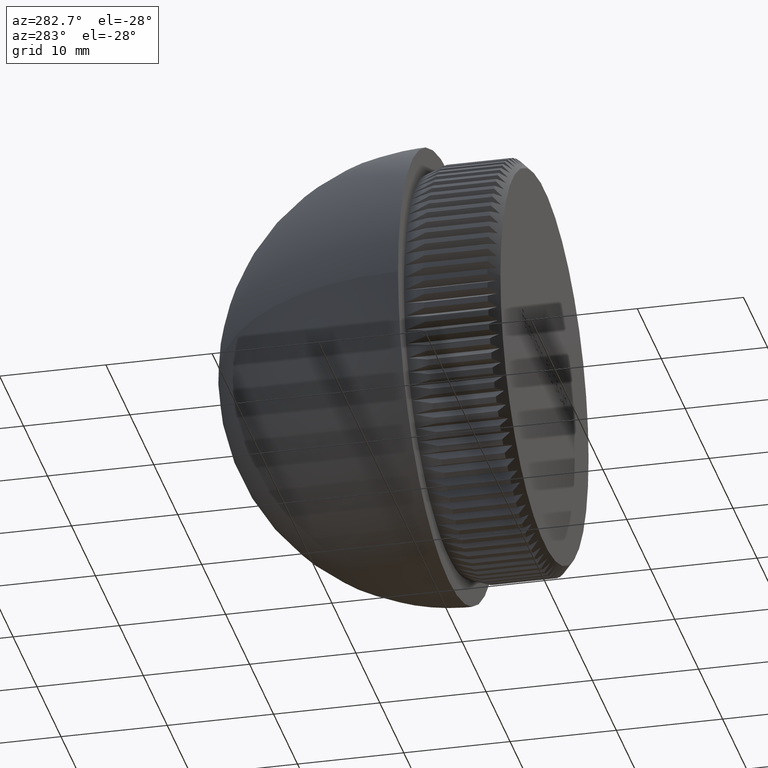
[diagram: clean part render]
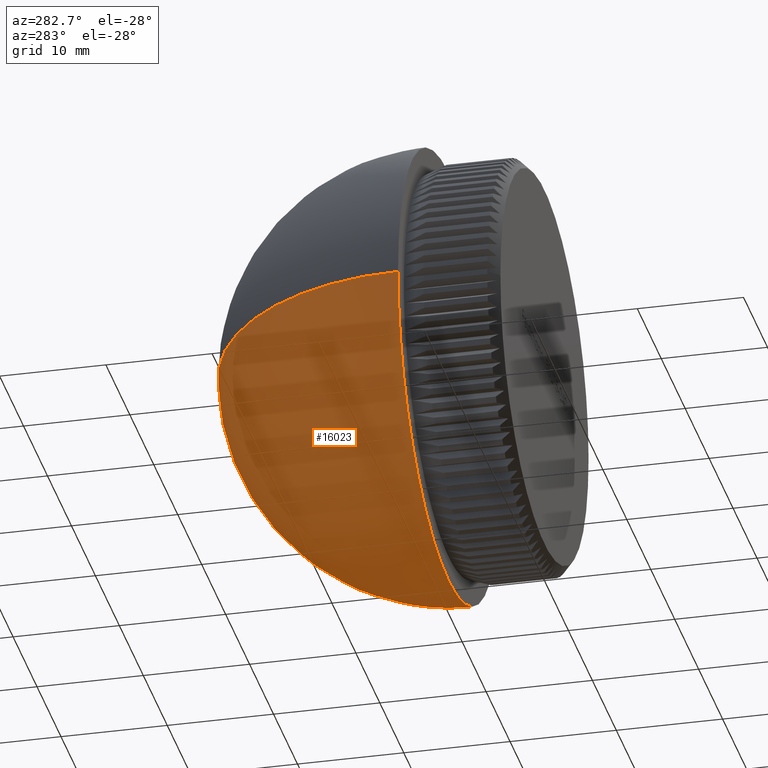
[diagram: same view with one face highlighted and labeled with its STEP entity id]
A machine part, auxiliary view. The second image highlights one B-rep face of the part: STEP entity #16023.
In plain terms, the highlighted spherical surface has radius 21.2 mm.
Its self-contained STEP definition (entity closure, byte-faithful):
#1336 = AXIS2_PLACEMENT_3D ( 'NONE', #9394, #7769, #4678 ) ;
#1824 = CIRCLE ( 'NONE', #1336, 21.20000000000000300 ) ;
#1942 = ORIENTED_EDGE ( 'NONE', *, *, #21062, .F. ) ;
#3090 = DIRECTION ( 'NONE',  ( 1.000000000000000000, 0.0000000000000000000, 0.0000000000000000000 ) ) ;
#4678 = DIRECTION ( 'NONE',  ( -1.000000000000000000, 0.0000000000000000000, 0.0000000000000000000 ) ) ;
#4770 = CARTESIAN_POINT ( 'NONE',  ( 1.298125607094238800E-015, 30.19999999999999900, 0.0000000000000000000 ) ) ;
#5063 = AXIS2_PLACEMENT_3D ( 'NONE', #16697, #6144, #18709 ) ;
#5141 = DIRECTION ( 'NONE',  ( 3.805014539713652200E-029, -1.000000000000000000, -0.0000000000000000000 ) ) ;
#6144 = DIRECTION ( 'NONE',  ( 1.224646799147353200E-016, 4.659798876769463300E-045, 1.000000000000000000 ) ) ;
#6807 = CARTESIAN_POINT ( 'NONE',  ( -3.424513085742286300E-028, 8.999999999999998200, 0.0000000000000000000 ) ) ;
#7053 = ORIENTED_EDGE ( 'NONE', *, *, #17319, .T. ) ;
#7410 = VERTEX_POINT ( 'NONE', #8937 ) ;
#7769 = DIRECTION ( 'NONE',  ( 0.0000000000000000000, 0.0000000000000000000, -1.000000000000000000 ) ) ;
#7860 = EDGE_LOOP ( 'NONE', ( #13930, #7053, #1942 ) ) ;
#8081 = SPHERICAL_SURFACE ( 'NONE', #23105, 21.20000000000000300 ) ;
#8199 = EDGE_CURVE ( 'NONE', #14768, #9600, #13875, .T. ) ;
#8937 = CARTESIAN_POINT ( 'NONE',  ( 21.20000000000000300, 8.999999999999998200, 0.0000000000000000000 ) ) ;
#9394 = CARTESIAN_POINT ( 'NONE',  ( -1.149114390993522900E-027, 8.999999999999996400, 0.0000000000000000000 ) ) ;
#9600 = VERTEX_POINT ( 'NONE', #19063 ) ;
#10490 = DIRECTION ( 'NONE',  ( 0.0000000000000000000, -0.0000000000000000000, 1.000000000000000000 ) ) ;
#13284 = AXIS2_PLACEMENT_3D ( 'NONE', #6807, #5141, #3090 ) ;
#13875 = CIRCLE ( 'NONE', #5063, 21.20000000000000300 ) ;
#13930 = ORIENTED_EDGE ( 'NONE', *, *, #8199, .F. ) ;
#14768 = VERTEX_POINT ( 'NONE', #4770 ) ;
#14985 = CIRCLE ( 'NONE', #13284, 21.20000000000000300 ) ;
#16023 = ADVANCED_FACE ( 'NONE', ( #17626 ), #8081, .T. ) ;
#16697 = CARTESIAN_POINT ( 'NONE',  ( -1.149114390993522900E-027, 8.999999999999996400, 0.0000000000000000000 ) ) ;
#17319 = EDGE_CURVE ( 'NONE', #14768, #7410, #1824, .T. ) ;
#17626 = FACE_OUTER_BOUND ( 'NONE', #7860, .T. ) ;
#17654 = CARTESIAN_POINT ( 'NONE',  ( -1.149114390993522900E-027, 8.999999999999996400, 0.0000000000000000000 ) ) ;
#18709 = DIRECTION ( 'NONE',  ( 1.000000000000000000, 0.0000000000000000000, -1.224646799147353200E-016 ) ) ;
#19063 = CARTESIAN_POINT ( 'NONE',  ( -21.20000000000000300, 8.999999999999998200, 2.596251214192388800E-015 ) ) ;
#21062 = EDGE_CURVE ( 'NONE', #9600, #7410, #14985, .T. ) ;
#23017 = DIRECTION ( 'NONE',  ( 1.000000000000000000, 0.0000000000000000000, 0.0000000000000000000 ) ) ;
#23105 = AXIS2_PLACEMENT_3D ( 'NONE', #17654, #10490, #23017 ) ;